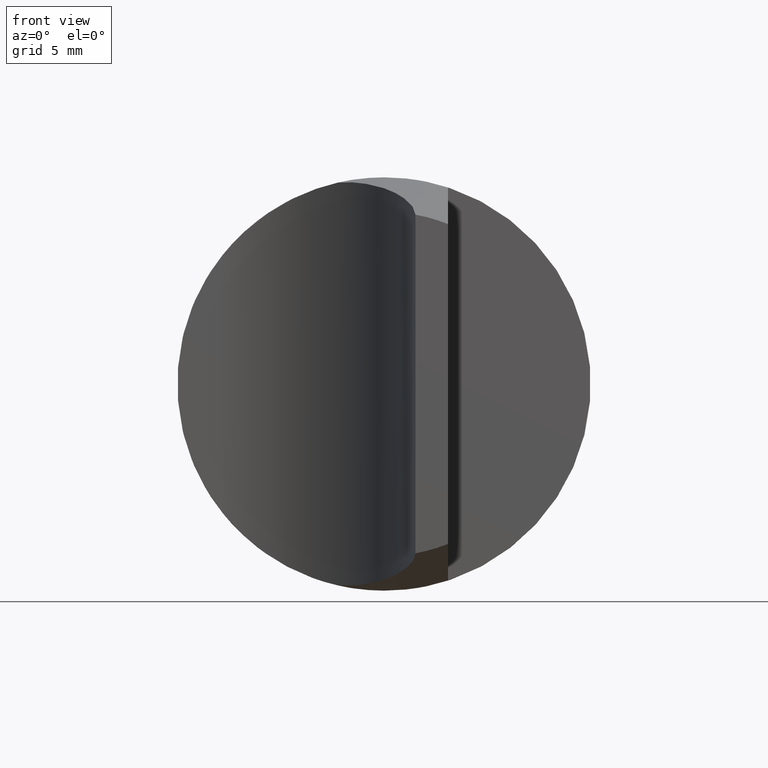
[diagram: clean part render]
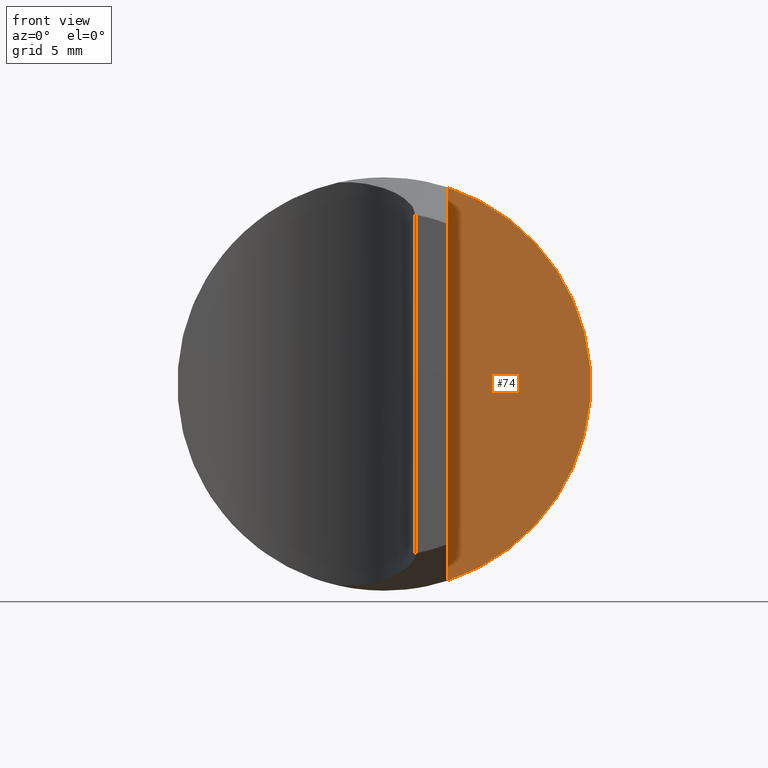
[diagram: same view with one face highlighted and labeled with its STEP entity id]
A machine part, front view. The second image highlights one B-rep face of the part: STEP entity #74.
In plain terms, the highlighted planar face has unit normal (-0, 1, 0).
Its self-contained STEP definition (entity closure, byte-faithful):
#3 = DIRECTION ( 'NONE',  ( 2.636918912803343208E-16, -1.000000000000000000, -0.000000000000000000 ) ) ;
#13 = PLANE ( 'NONE',  #95 ) ;
#22 = CARTESIAN_POINT ( 'NONE',  ( 0.1159999999999999365, 0.3150000000000000022, -0.3566076275123682415 ) ) ;
#57 = ORIENTED_EDGE ( 'NONE', *, *, #498, .F. ) ;
#74 = ADVANCED_FACE ( 'NONE', ( #228 ), #13, .F. ) ;
#95 = AXIS2_PLACEMENT_3D ( 'NONE', #281, #142, #449 ) ;
#129 = CARTESIAN_POINT ( 'NONE',  ( 0.1160000000000000059, 0.3150000000000000022, -0.3750000000000000555 ) ) ;
#142 = DIRECTION ( 'NONE',  ( -2.636918912803343208E-16, 1.000000000000000000, 0.000000000000000000 ) ) ;
#165 = VECTOR ( 'NONE', #484, 39.37007874015748143 ) ;
#228 = FACE_OUTER_BOUND ( 'NONE', #473, .T. ) ;
#267 = LINE ( 'NONE', #129, #165 ) ;
#281 = CARTESIAN_POINT ( 'NONE',  ( -8.306294575330528024E-17, 0.3150000000000000022, -0.3750000000000000555 ) ) ;
#324 = VERTEX_POINT ( 'NONE', #22 ) ;
#365 = CARTESIAN_POINT ( 'NONE',  ( 0.1159999999999999365, 0.3150000000000000022, 0.3566076275123682415 ) ) ;
#380 = CIRCLE ( 'NONE', #555, 0.3750000000000000555 ) ;
#396 = EDGE_CURVE ( 'NONE', #324, #480, #380, .T. ) ;
#425 = DIRECTION ( 'NONE',  ( -1.000000000000000000, -1.821231995776175232E-16, 8.881784197001249365E-16 ) ) ;
#433 = CARTESIAN_POINT ( 'NONE',  ( 0.000000000000000000, 0.3150000000000000022, 0.000000000000000000 ) ) ;
#449 = DIRECTION ( 'NONE',  ( -1.000000000000000000, -2.636918912803343208E-16, 0.000000000000000000 ) ) ;
#473 = EDGE_LOOP ( 'NONE', ( #57, #534 ) ) ;
#480 = VERTEX_POINT ( 'NONE', #365 ) ;
#484 = DIRECTION ( 'NONE',  ( -0.000000000000000000, -0.000000000000000000, 1.000000000000000000 ) ) ;
#498 = EDGE_CURVE ( 'NONE', #324, #480, #267, .T. ) ;
#534 = ORIENTED_EDGE ( 'NONE', *, *, #396, .T. ) ;
#555 = AXIS2_PLACEMENT_3D ( 'NONE', #433, #3, #425 ) ;